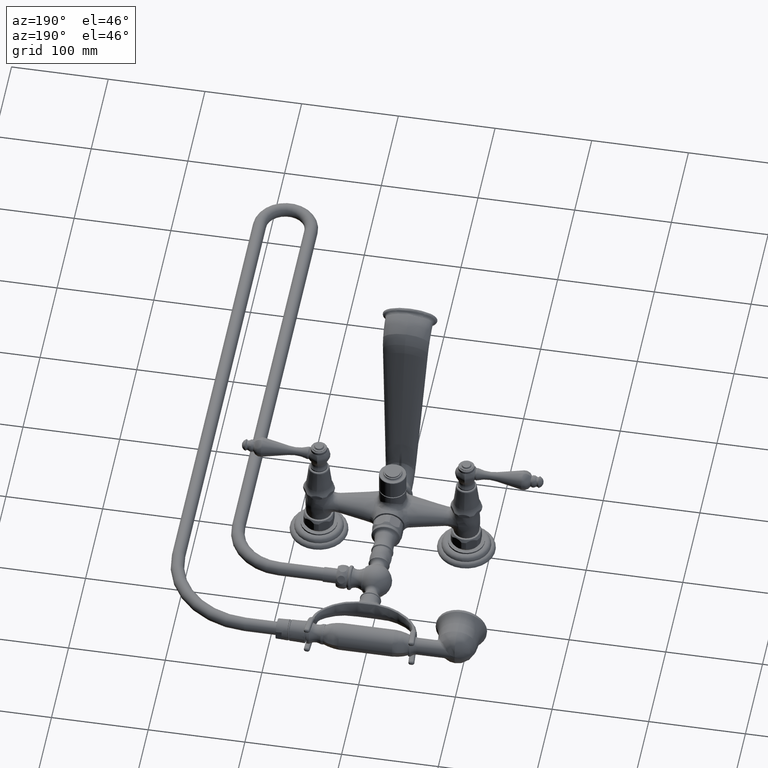
[diagram: clean part render]
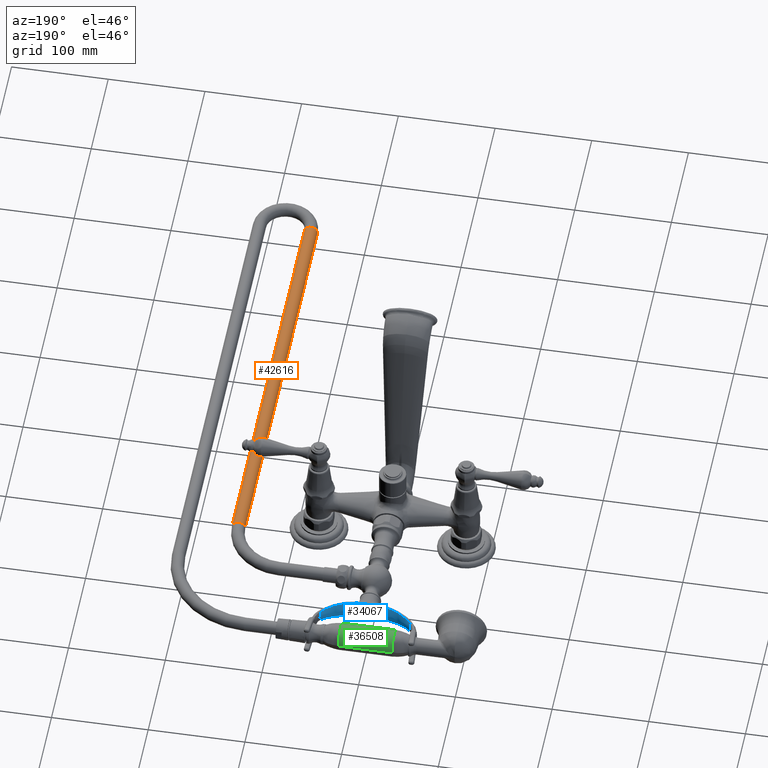
[diagram: same view with three faces highlighted in distinct colors, each labeled with its STEP entity id]
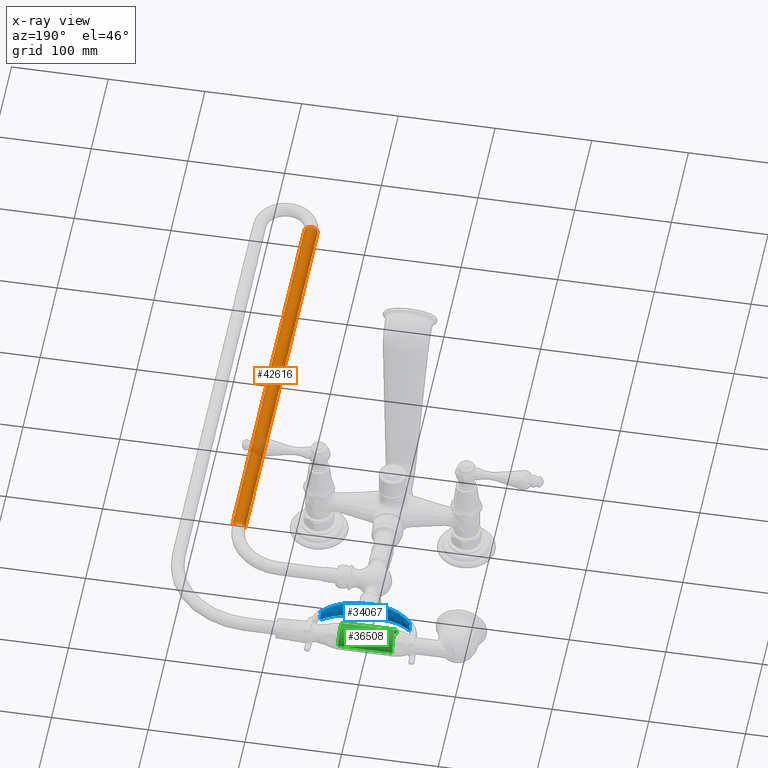
[diagram: x-ray of the same camera — body ghosted, the three highlighted faces saturated]
A machine part, auxiliary view with three faces highlighted in distinct colors.
The next image is the same camera in x-ray (body ghosted, the three faces saturated) — at least one of them is partly hidden behind the body in this view.
Their STEP definitions:

[orange] entity #42616 — the highlighted cylindrical surface (edge-blend (fillet) strip) has radius 6.858 mm, axis along (0, 1, 0).
#17487=DIRECTION('',(0.E0,1.E0,0.E0));
#17488=VECTOR('',#17487,1.6713E1);
#17489=CARTESIAN_POINT('',(6.183426495012E0,-1.466473228346E1,0.E0));
#17490=LINE('',#17489,#17488);
#17491=CARTESIAN_POINT('',(5.913426495012E0,-1.466473228346E1,0.E0));
#17492=DIRECTION('',(0.E0,1.E0,0.E0));
#17493=DIRECTION('',(-1.E0,0.E0,0.E0));
#17494=AXIS2_PLACEMENT_3D('',#17491,#17492,#17493);
#17496=DIRECTION('',(0.E0,1.E0,0.E0));
#17497=VECTOR('',#17496,1.6713E1);
#17498=CARTESIAN_POINT('',(5.643426495012E0,-1.466473228346E1,0.E0));
#17499=LINE('',#17498,#17497);
#17500=CARTESIAN_POINT('',(5.913426495012E0,2.048267716535E0,0.E0));
#17501=DIRECTION('',(0.E0,1.E0,0.E0));
#17502=DIRECTION('',(-1.E0,0.E0,0.E0));
#17503=AXIS2_PLACEMENT_3D('',#17500,#17501,#17502);
#19331=CARTESIAN_POINT('',(6.183426495012E0,-1.466473228346E1,0.E0));
#19332=CARTESIAN_POINT('',(5.643426495012E0,-1.466473228346E1,0.E0));
#19333=VERTEX_POINT('',#19331);
#19334=VERTEX_POINT('',#19332);
#19335=CARTESIAN_POINT('',(6.183426495012E0,2.048267716535E0,0.E0));
#19336=CARTESIAN_POINT('',(5.643426495012E0,2.048267716535E0,0.E0));
#19337=VERTEX_POINT('',#19335);
#19338=VERTEX_POINT('',#19336);
#42604=CARTESIAN_POINT('',(5.913426495012E0,-1.466473228346E1,0.E0));
#42605=DIRECTION('',(0.E0,1.E0,0.E0));
#42606=DIRECTION('',(1.E0,0.E0,0.E0));
#42607=AXIS2_PLACEMENT_3D('',#42604,#42605,#42606);
#42608=CYLINDRICAL_SURFACE('',#42607,2.7E-1);
#42609=ORIENTED_EDGE('',*,*,#42569,.F.);
#42610=ORIENTED_EDGE('',*,*,#42599,.T.);
#42612=ORIENTED_EDGE('',*,*,#42611,.T.);
#42613=ORIENTED_EDGE('',*,*,#42595,.F.);
#42614=EDGE_LOOP('',(#42609,#42610,#42612,#42613));
#42615=FACE_OUTER_BOUND('',#42614,.F.);
#42616=ADVANCED_FACE('',(#42615),#42608,.T.);
#17495=CIRCLE('',#17494,2.7E-1);
#17504=CIRCLE('',#17503,2.7E-1);
#42569=EDGE_CURVE('',#19334,#19333,#17495,.T.);
#42595=EDGE_CURVE('',#19333,#19337,#17490,.T.);
#42599=EDGE_CURVE('',#19334,#19338,#17499,.T.);
#42611=EDGE_CURVE('',#19338,#19337,#17504,.T.);

[blue] entity #34067 — the highlighted face is a freeform B-spline surface patch.
#7843=CARTESIAN_POINT('',(-1.830206889100E0,6.359858918729E0,
2.277887654960E-1));
#7844=CARTESIAN_POINT('',(-1.816718053283E0,6.344438795125E0,
2.302361886630E-1));
#7845=CARTESIAN_POINT('',(-1.787107141337E0,6.312499611002E0,
2.355580722841E-1));
#7846=CARTESIAN_POINT('',(-1.734929078441E0,6.262525362922E0,
2.446444229163E-1));
#7847=CARTESIAN_POINT('',(-1.672642942663E0,6.209331049325E0,
2.549939081348E-1));
#7848=CARTESIAN_POINT('',(-1.597986643695E0,6.152258711095E0,
2.666318879203E-1));
#7849=CARTESIAN_POINT('',(-1.506663527161E0,6.089716515205E0,
2.794642780415E-1));
#7850=CARTESIAN_POINT('',(-1.415328945322E0,6.033876658538E0,
2.911661666514E-1));
#7851=CARTESIAN_POINT('',(-1.322862700612E0,5.983574927829E0,
3.021657273372E-1));
#7852=CARTESIAN_POINT('',(-1.229912848922E0,5.939075231499E0,
3.125874236107E-1));
#7853=CARTESIAN_POINT('',(-1.136716715415E0,5.900246630198E0,
3.226283304235E-1));
#7854=CARTESIAN_POINT('',(-1.043248519368E0,5.866955655858E0,
3.324787980013E-1));
#7855=CARTESIAN_POINT('',(-9.507204635411E-1,5.839316811206E0,
3.422352458476E-1));
#7856=CARTESIAN_POINT('',(-8.491578744886E-1,5.814581336011E0,
3.528195817425E-1));
#7857=CARTESIAN_POINT('',(-7.370343506903E-1,5.793241903685E0,
3.640744236231E-1));
#7858=CARTESIAN_POINT('',(-6.109279993251E-1,5.775506272076E0,
3.758715675650E-1));
#7859=CARTESIAN_POINT('',(-4.657571366178E-1,5.761871948261E0,
3.878193296118E-1));
#7860=CARTESIAN_POINT('',(-2.972072768266E-1,5.752995182198E0,
3.988295510202E-1));
#7861=CARTESIAN_POINT('',(-9.954735926678E-2,5.749643863348E0,
4.064383412732E-1));
#7862=CARTESIAN_POINT('',(1.000589044638E-1,5.749656728392E0,
4.064170575455E-1));
#7863=CARTESIAN_POINT('',(2.977838659146E-1,5.753044157440E0,
3.987687626937E-1));
#7864=CARTESIAN_POINT('',(4.663966996600E-1,5.761959304756E0,
3.877298289868E-1));
#7865=CARTESIAN_POINT('',(6.116173826745E-1,5.775631822815E0,
3.757657500269E-1));
#7866=CARTESIAN_POINT('',(7.377704071497E-1,5.793404599902E0,
3.639627139350E-1));
#7867=CARTESIAN_POINT('',(8.499428308659E-1,5.814781535291E0,
3.527105281906E-1));
#7868=CARTESIAN_POINT('',(9.515480713114E-1,5.839552393754E0,
3.421370703203E-1));
#7869=CARTESIAN_POINT('',(1.044155150289E0,5.867237539230E0,3.323956416018E-1));
#7870=CARTESIAN_POINT('',(1.137701656598E0,5.900577709618E0,3.225645623954E-1));
#7871=CARTESIAN_POINT('',(1.230896484571E0,5.939428162770E0,3.125508610050E-1));
#7872=CARTESIAN_POINT('',(1.323767827483E0,5.983913264421E0,3.021611661149E-1));
#7873=CARTESIAN_POINT('',(1.416075253807E0,6.034155977688E0,2.911961098848E-1));
#7874=CARTESIAN_POINT('',(1.507130266136E0,6.089854656679E0,2.795354126642E-1));
#7875=CARTESIAN_POINT('',(1.598192238631E0,6.152255586446E0,2.667327189298E-1));
#7876=CARTESIAN_POINT('',(1.672794739033E0,6.209324018490E0,2.550837257086E-1));
#7877=CARTESIAN_POINT('',(1.735024341959E0,6.262508422639E0,2.447179741863E-1));
#7878=CARTESIAN_POINT('',(1.787186794720E0,6.312502228598E0,2.356085081097E-1));
#7879=CARTESIAN_POINT('',(1.816789385293E0,6.344455311772E0,2.302721797293E-1));
#7880=CARTESIAN_POINT('',(1.830276470360E0,6.359884435171E0,2.278178638269E-1));
#8002=CARTESIAN_POINT('',(1.830276470360E0,6.359884435171E0,2.278178638269E-1));
#8063=CARTESIAN_POINT('',(1.830276470360E0,6.359884435171E0,2.278178638269E-1));
#8064=CARTESIAN_POINT('',(1.827364888660E0,6.360296231183E0,2.241607536722E-1));
#8065=CARTESIAN_POINT('',(1.821963815485E0,6.361378617099E0,2.167751121295E-1));
#8066=CARTESIAN_POINT('',(1.815145727285E0,6.363698294901E0,2.055937152852E-1));
#8067=CARTESIAN_POINT('',(1.809500619340E0,6.366676481334E0,1.942279702186E-1));
#8068=CARTESIAN_POINT('',(1.804952225097E0,6.370329493475E0,1.825404403914E-1));
#8069=CARTESIAN_POINT('',(1.801474199246E0,6.374706553938E0,1.703756943031E-1));
#8070=CARTESIAN_POINT('',(1.799083699564E0,6.379901609268E0,1.575374022096E-1));
#8071=CARTESIAN_POINT('',(1.797847653787E0,6.386199633273E0,1.434659100603E-1));
#8072=CARTESIAN_POINT('',(1.797971699287E0,6.393842515620E0,1.277870200511E-1));
#8073=CARTESIAN_POINT('',(1.799883031033E0,6.403416541462E0,1.095668484374E-1));
#8074=CARTESIAN_POINT('',(1.803573646529E0,6.413951065805E0,9.046223298287E-2));
#8075=CARTESIAN_POINT('',(1.807552901230E0,6.422879577706E0,7.424801561883E-2));
#8076=CARTESIAN_POINT('',(1.811331762979E0,6.430468008407E0,5.969619369017E-2));
#8077=CARTESIAN_POINT('',(1.814643860678E0,6.436676929025E0,4.641705161701E-2));
#8078=CARTESIAN_POINT('',(1.817301278200E0,6.441457779672E0,3.421344403465E-2));
#8079=CARTESIAN_POINT('',(1.819182822908E0,6.444763639748E0,2.309108135460E-2));
#8080=CARTESIAN_POINT('',(1.820301921304E0,6.446703214157E0,1.317581694008E-2));
#8081=CARTESIAN_POINT('',(1.820804084414E0,6.447568077404E0,4.133939502213E-3));
#8082=CARTESIAN_POINT('',(1.820788179067E0,6.447540702712E0,
-4.689995066289E-3));
#8083=CARTESIAN_POINT('',(1.820251479306E0,6.446616214134E0,
-1.376543054039E-2));
#8084=CARTESIAN_POINT('',(1.819088207297E0,6.444598756842E0,
-2.375369873940E-2));
#8085=CARTESIAN_POINT('',(1.817157106043E0,6.441202244814E0,
-3.494354834262E-2));
#8086=CARTESIAN_POINT('',(1.814456038736E0,6.436332873645E0,
-4.720933374739E-2));
#8087=CARTESIAN_POINT('',(1.811106409187E0,6.430032369887E0,
-6.056807568035E-2));
#8088=CARTESIAN_POINT('',(1.807338831245E0,6.422422235663E0,
-7.509167908484E-2));
#8089=CARTESIAN_POINT('',(1.803475345568E0,6.413682597928E0,
-9.094672706367E-2));
#8090=CARTESIAN_POINT('',(1.799892247924E0,6.403426016853E0,
-1.095532008914E-1));
#8091=CARTESIAN_POINT('',(1.797969710040E0,6.393844238598E0,
-1.277822617727E-1));
#8092=CARTESIAN_POINT('',(1.797848208905E0,6.386198842454E0,
-1.434678838808E-1));
#8093=CARTESIAN_POINT('',(1.799083570201E0,6.379901765096E0,
-1.575370061994E-1));
#8094=CARTESIAN_POINT('',(1.801474221578E0,6.374706531799E0,
-1.703757487555E-1));
#8095=CARTESIAN_POINT('',(1.804952220178E0,6.370329498421E0,
-1.825404288184E-1));
#8096=CARTESIAN_POINT('',(1.809500619766E0,6.366676480609E0,
-1.942279712251E-1));
#8097=CARTESIAN_POINT('',(1.815145725517E0,6.363698295761E0,
-2.055937120245E-1));
#8098=CARTESIAN_POINT('',(1.821963814583E0,6.361378617522E0,
-2.167751105812E-1));
#8099=CARTESIAN_POINT('',(1.827364887996E0,6.360296231067E0,
-2.241607530997E-1));
#8100=CARTESIAN_POINT('',(1.830276470004E0,6.359884434821E0,
-2.278178638517E-1));
#8141=CARTESIAN_POINT('',(-1.830206887236E0,6.359858916669E0,
-2.277887657738E-1));
#8142=CARTESIAN_POINT('',(-1.827296207364E0,6.360269492400E0,
-2.241344900538E-1));
#8143=CARTESIAN_POINT('',(-1.821896378257E0,6.361349052889E0,
-2.167546414792E-1));
#8144=CARTESIAN_POINT('',(-1.815078465056E0,6.363663468881E0,
-2.055820301495E-1));
#8145=CARTESIAN_POINT('',(-1.809432115300E0,6.366635308827E0,
-1.942255199947E-1));
#8146=CARTESIAN_POINT('',(-1.804880992402E0,6.370280691212E0,
-1.825478576950E-1));
#8147=CARTESIAN_POINT('',(-1.801398515473E0,6.374648502858E0,
-1.703938194072E-1));
#8148=CARTESIAN_POINT('',(-1.799001722393E0,6.379832134602E0,
-1.575678141324E-1));
#8149=CARTESIAN_POINT('',(-1.797756674889E0,6.386114862565E0,
-1.435124038409E-1));
#8150=CARTESIAN_POINT('',(-1.797868258746E0,6.393738573702E0,
-1.278518833498E-1));
#8151=CARTESIAN_POINT('',(-1.799759458530E0,6.403281350175E0,
-1.096644620251E-1));
#8152=CARTESIAN_POINT('',(-1.803431710714E0,6.413798325520E0,
-9.056372369547E-2));
#8153=CARTESIAN_POINT('',(-1.807405807114E0,6.422728869096E0,
-7.432388378991E-2));
#8154=CARTESIAN_POINT('',(-1.811179854172E0,6.430313515800E0,
-5.975984074856E-2));
#8155=CARTESIAN_POINT('',(-1.814489665075E0,6.436520827257E0,
-4.646717881418E-2));
#8156=CARTESIAN_POINT('',(-1.817145786214E0,6.441300203606E0,
-3.425209163595E-2));
#8157=CARTESIAN_POINT('',(-1.819026904309E0,6.444605439677E0,
-2.311905582195E-2));
#8158=CARTESIAN_POINT('',(-1.820145973270E0,6.446544883872E0,
-1.319409514277E-2));
#8159=CARTESIAN_POINT('',(-1.820648311175E0,6.447409973781E0,
-4.143820035723E-3));
#8160=CARTESIAN_POINT('',(-1.820632756166E0,6.447383204611E0,
4.688278875482E-3));
#8161=CARTESIAN_POINT('',(-1.820096651583E0,6.446459823129E0,
1.377137474371E-2));
#8162=CARTESIAN_POINT('',(-1.818934384486E0,6.444444209913E0,
2.376791435500E-2));
#8163=CARTESIAN_POINT('',(-1.817004790776E0,6.441050287097E0,
3.496712964635E-2));
#8164=CARTESIAN_POINT('',(-1.814306004462E0,6.436184279345E0,
4.724330186329E-2));
#8165=CARTESIAN_POINT('',(-1.810959481081E0,6.429887324762E0,
6.061402090810E-2));
#8166=CARTESIAN_POINT('',(-1.807197069894E0,6.422282111244E0,
7.514902857128E-2));
#8167=CARTESIAN_POINT('',(-1.803339583969E0,6.413545006334E0,
9.102151992232E-2));
#8168=CARTESIAN_POINT('',(-1.799768954558E0,6.403293590733E0,
1.096454181281E-1));
#8169=CARTESIAN_POINT('',(-1.797866119908E0,6.393738960237E0,
1.278497345190E-1));
#8170=CARTESIAN_POINT('',(-1.797757269391E0,6.386114437163E0,
1.435136628553E-1));
#8171=CARTESIAN_POINT('',(-1.799001585067E0,6.379832179941E0,
1.575676378331E-1));
#8172=CARTESIAN_POINT('',(-1.801398552401E0,6.374648488599E0,
1.703938712043E-1));
#8173=CARTESIAN_POINT('',(-1.804880997557E0,6.370280678633E0,
1.825478912848E-1));
#8174=CARTESIAN_POINT('',(-1.809432131594E0,6.366635299755E0,
1.942255528522E-1));
#8175=CARTESIAN_POINT('',(-1.815078481407E0,6.363663461848E0,
2.055820604515E-1));
#8176=CARTESIAN_POINT('',(-1.821896402395E0,6.361349045340E0,
2.167546785584E-1));
#8177=CARTESIAN_POINT('',(-1.827296220539E0,6.360269492876E0,
2.241345039499E-1));
#8178=CARTESIAN_POINT('',(-1.830206889100E0,6.359858918729E0,
2.277887654960E-1));
#8227=CARTESIAN_POINT('',(-1.830206889100E0,6.359858918729E0,
2.277887654960E-1));
#8387=CARTESIAN_POINT('',(-1.830206887236E0,6.359858916669E0,
-2.277887657738E-1));
#8388=CARTESIAN_POINT('',(-1.816718398561E0,6.344439190065E0,
-2.302361259936E-1));
#8389=CARTESIAN_POINT('',(-1.787108322002E0,6.312500915021E0,
-2.355578550385E-1));
#8390=CARTESIAN_POINT('',(-1.734932629102E0,6.262528514277E0,
-2.446438289876E-1));
#8391=CARTESIAN_POINT('',(-1.672646719069E0,6.209334412497E0,
-2.549932478332E-1));
#8392=CARTESIAN_POINT('',(-1.598002213243E0,6.152269657206E0,
-2.666296325773E-1));
#8393=CARTESIAN_POINT('',(-1.506653002102E0,6.089709400095E0,
-2.794657457596E-1));
#8394=CARTESIAN_POINT('',(-1.415327737616E0,6.033876210406E0,
-2.911662738971E-1));
#8395=CARTESIAN_POINT('',(-1.322862086338E0,5.983574609528E0,
-3.021658037071E-1));
#8396=CARTESIAN_POINT('',(-1.229915682650E0,5.939076527961E0,
-3.125871068939E-1));
#8397=CARTESIAN_POINT('',(-1.136720488195E0,5.900248250340E0,
-3.226279277044E-1));
#8398=CARTESIAN_POINT('',(-1.043260498986E0,5.866959435799E0,
-3.324775381431E-1));
#8399=CARTESIAN_POINT('',(-9.507140216696E-1,5.839314882115E0,
-3.422359246808E-1));
#8400=CARTESIAN_POINT('',(-8.491567557990E-1,5.814581246362E0,
-3.528196888758E-1));
#8401=CARTESIAN_POINT('',(-7.370356639307E-1,5.793242121176E0,
-3.640742974556E-1));
#8402=CARTESIAN_POINT('',(-6.109315882234E-1,5.775506758373E0,
-3.758712179448E-1));
#8403=CARTESIAN_POINT('',(-4.657642604180E-1,5.761872423124E0,
-3.878188589081E-1));
#8404=CARTESIAN_POINT('',(-2.972137984944E-1,5.752995560546E0,
-3.988289627952E-1));
#8405=CARTESIAN_POINT('',(-9.957443915870E-2,5.749643921755E0,
-4.064380862005E-1));
#8406=CARTESIAN_POINT('',(1.000815730151E-1,5.749656778297E0,
-4.064168896066E-1));
#8407=CARTESIAN_POINT('',(2.977858720469E-1,5.753044385500E0,
-3.987684153405E-1));
#8408=CARTESIAN_POINT('',(4.664000836456E-1,5.761959505975E0,
-3.877296406781E-1));
#8409=CARTESIAN_POINT('',(6.116177317011E-1,5.775631931136E0,
-3.757656878334E-1));
#8410=CARTESIAN_POINT('',(7.377687803826E-1,5.793404330886E0,
-3.639628748470E-1));
#8411=CARTESIAN_POINT('',(8.499391337480E-1,5.814780884352E0,
-3.527108998993E-1));
#8412=CARTESIAN_POINT('',(9.515390888578E-1,5.839549785548E0,
-3.421380150305E-1));
#8413=CARTESIAN_POINT('',(1.044164347237E0,5.867240398383E0,
-3.323946759495E-1));
#8414=CARTESIAN_POINT('',(1.137703788141E0,5.900578685210E0,
-3.225643352415E-1));
#8415=CARTESIAN_POINT('',(1.230897375445E0,5.939428599037E0,
-3.125507566859E-1));
#8416=CARTESIAN_POINT('',(1.323765342083E0,5.983911981179E0,
-3.021614585621E-1));
#8417=CARTESIAN_POINT('',(1.416072257030E0,6.034154512304E0,
-2.911964335507E-1));
#8418=CARTESIAN_POINT('',(1.507117685770E0,6.089846165032E0,
-2.795371648142E-1));
#8419=CARTESIAN_POINT('',(1.598208475798E0,6.152266994218E0,
-2.667303656968E-1));
#8420=CARTESIAN_POINT('',(1.672798355548E0,6.209327277208E0,
-2.550830861292E-1));
#8421=CARTESIAN_POINT('',(1.735027957808E0,6.262511624401E0,
-2.447173688712E-1));
#8422=CARTESIAN_POINT('',(1.787187981734E0,6.312503544635E0,
-2.356082887177E-1));
#8423=CARTESIAN_POINT('',(1.816789737684E0,6.344455715206E0,
-2.302721153260E-1));
#8424=CARTESIAN_POINT('',(1.830276470004E0,6.359884434821E0,
-2.278178638517E-1));
#16835=CARTESIAN_POINT('',(-1.830206887236E0,6.359858916669E0,
-2.277887657738E-1));
#19124=VERTEX_POINT('',#8227);
#19137=VERTEX_POINT('',#16835);
#19145=VERTEX_POINT('',#8002);
#19147=VERTEX_POINT('',#8100);
#33959=CARTESIAN_POINT('',(-1.888789809934E0,6.393595143223E0,
2.550197619299E-1));
#33960=CARTESIAN_POINT('',(-1.882826494205E0,6.398302839033E0,
2.451645920230E-1));
#33961=CARTESIAN_POINT('',(-1.865333903947E0,6.412112093077E0,
2.134160437510E-1));
#33962=CARTESIAN_POINT('',(-1.841977856107E0,6.430549627663E0,
1.551993021022E-1));
#33963=CARTESIAN_POINT('',(-1.824561934292E0,6.444297612407E0,
7.901608254775E-2));
#33964=CARTESIAN_POINT('',(-1.818686372897E0,6.448935672711E0,0.E0));
#33965=CARTESIAN_POINT('',(-1.824561934292E0,6.444297612407E0,
-7.901608254775E-2));
#33966=CARTESIAN_POINT('',(-1.841977856107E0,6.430549627663E0,
-1.551993021022E-1));
#33967=CARTESIAN_POINT('',(-1.865333903798E0,6.412112093194E0,
-2.134160433808E-1));
#33968=CARTESIAN_POINT('',(-1.882826493831E0,6.398302839327E0,
-2.451645913452E-1));
#33969=CARTESIAN_POINT('',(-1.888789809340E0,6.393595143692E0,
-2.550197609473E-1));
#33970=CARTESIAN_POINT('',(-1.805070499675E0,6.287910153E0,2.651142230618E-1));
#33971=CARTESIAN_POINT('',(-1.799558961320E0,6.293864708647E0,
2.549401904023E-1));
#33972=CARTESIAN_POINT('',(-1.783383608234E0,6.311337489122E0,
2.221141148538E-1));
#33973=CARTESIAN_POINT('',(-1.761757882717E0,6.334687976018E0,
1.616922897694E-1));
#33974=CARTESIAN_POINT('',(-1.745614766235E0,6.352112516889E0,
8.237935594466E-2));
#33975=CARTESIAN_POINT('',(-1.740165705333E0,6.357993105273E0,0.E0));
#33976=CARTESIAN_POINT('',(-1.745614766235E0,6.352112516889E0,
-8.237935594466E-2));
#33977=CARTESIAN_POINT('',(-1.761757882717E0,6.334687976018E0,
-1.616922897694E-1));
#33978=CARTESIAN_POINT('',(-1.783383608097E0,6.311337489270E0,
-2.221141144696E-1));
#33979=CARTESIAN_POINT('',(-1.799558960974E0,6.293864709020E0,
-2.549401897015E-1));
#33980=CARTESIAN_POINT('',(-1.805070499125E0,6.287910153593E0,
-2.651142220474E-1));
#33981=CARTESIAN_POINT('',(-1.528887716378E0,6.062419933154E0,
2.986631125522E-1));
#33982=CARTESIAN_POINT('',(-1.524911726193E0,6.071403808415E0,
2.873999827559E-1));
#33983=CARTESIAN_POINT('',(-1.513223688791E0,6.097791075959E0,
2.509194587933E-1));
#33984=CARTESIAN_POINT('',(-1.497528725848E0,6.133145221629E0,
1.831297214794E-1));
#33985=CARTESIAN_POINT('',(-1.485770703797E0,6.159582533891E0,
9.346212202101E-2));
#33986=CARTESIAN_POINT('',(-1.481794815354E0,6.168514051536E0,0.E0));
#33987=CARTESIAN_POINT('',(-1.485770703797E0,6.159582533891E0,
-9.346212202101E-2));
#33988=CARTESIAN_POINT('',(-1.497528725848E0,6.133145221629E0,
-1.831297214794E-1));
#33989=CARTESIAN_POINT('',(-1.513223688691E0,6.097791076184E0,
-2.509194583623E-1));
#33990=CARTESIAN_POINT('',(-1.524911725944E0,6.071403808978E0,
-2.873999819771E-1));
#33991=CARTESIAN_POINT('',(-1.528887715982E0,6.062419934049E0,
-2.986631114292E-1));
#33992=CARTESIAN_POINT('',(-9.050877400622E-1,5.766219675702E0,
3.455729930128E-1));
#33993=CARTESIAN_POINT('',(-9.037331480308E-1,5.778549059970E0,
3.332490253118E-1));
#33994=CARTESIAN_POINT('',(-8.997396762385E-1,5.814883771107E0,
2.928273101133E-1));
#33995=CARTESIAN_POINT('',(-8.943361074793E-1,5.863999385048E0,
2.153986235274E-1));
#33996=CARTESIAN_POINT('',(-8.902626813711E-1,5.900994484904E0,
1.105108186188E-1));
#33997=CARTESIAN_POINT('',(-8.888810661810E-1,5.913537360742E0,0.E0));
#33998=CARTESIAN_POINT('',(-8.902626813711E-1,5.900994484904E0,
-1.105108186188E-1));
#33999=CARTESIAN_POINT('',(-8.943361074793E-1,5.863999385048E0,
-2.153986235274E-1));
#34000=CARTESIAN_POINT('',(-8.997396762041E-1,5.814883771419E0,
-2.928273096210E-1));
#34001=CARTESIAN_POINT('',(-9.037331479456E-1,5.778549060746E0,
-3.332490244489E-1));
#34002=CARTESIAN_POINT('',(-9.050877399271E-1,5.766219676931E0,
-3.455729917840E-1));
#34003=CARTESIAN_POINT('',(2.796345988187E-5,5.739766164592E0,
4.433473804547E-1));
#34004=CARTESIAN_POINT('',(2.908878194280E-5,5.753057425193E0,
4.261880474582E-1));
#34005=CARTESIAN_POINT('',(3.238370880415E-5,5.792032830760E0,
3.709249553253E-1));
#34006=CARTESIAN_POINT('',(3.676141852305E-5,5.844025942715E0,
2.696717751378E-1));
#34007=CARTESIAN_POINT('',(4.001239042356E-5,5.882766122566E0,
1.372712936820E-1));
#34008=CARTESIAN_POINT('',(4.110693200371E-5,5.895830777042E0,0.E0));
#34009=CARTESIAN_POINT('',(4.001239042351E-5,5.882766122566E0,
-1.372712936820E-1));
#34010=CARTESIAN_POINT('',(3.676141852388E-5,5.844025942715E0,
-2.696717751378E-1));
#34011=CARTESIAN_POINT('',(3.238370883224E-5,5.792032831091E0,
-3.709249546815E-1));
#34012=CARTESIAN_POINT('',(2.908878201363E-5,5.753057426025E0,
-4.261880462785E-1));
#34013=CARTESIAN_POINT('',(2.796345999451E-5,5.739766165917E0,
-4.433473787439E-1));
#34014=CARTESIAN_POINT('',(9.053714533057E-1,5.766300169087E0,
3.454690976585E-1));
#34015=CARTESIAN_POINT('',(9.040126230321E-1,5.778623411289E0,
3.331488119975E-1));
#34016=CARTESIAN_POINT('',(9.000067304360E-1,5.814940056860E0,
2.927391923059E-1));
#34017=CARTESIAN_POINT('',(8.945866186213E-1,5.864031376138E0,
2.153337550870E-1));
#34018=CARTESIAN_POINT('',(8.905008821938E-1,5.901008253448E0,
1.104775211728E-1));
#34019=CARTESIAN_POINT('',(8.891151181348E-1,5.913544963811E0,0.E0));
#34020=CARTESIAN_POINT('',(8.905008821938E-1,5.901008253448E0,
-1.104775211728E-1));
#34021=CARTESIAN_POINT('',(8.945866186213E-1,5.864031376138E0,
-2.153337550870E-1));
#34022=CARTESIAN_POINT('',(9.000067304015E-1,5.814940057172E0,
-2.927391918138E-1));
#34023=CARTESIAN_POINT('',(9.040126229466E-1,5.778623412065E0,
-3.331488111348E-1));
#34024=CARTESIAN_POINT('',(9.053714531703E-1,5.766300170315E0,
-3.454690964301E-1));
#34025=CARTESIAN_POINT('',(1.529460418583E0,6.062513121028E0,
2.987645311511E-1));
#34026=CARTESIAN_POINT('',(1.525489237782E0,6.071506083833E0,
2.874983349246E-1));
#34027=CARTESIAN_POINT('',(1.513815269710E0,6.097920133337E0,
2.510073348083E-1));
#34028=CARTESIAN_POINT('',(1.498138955199E0,6.133310484349E0,
1.831956479777E-1));
#34029=CARTESIAN_POINT('',(1.486394754557E0,6.159775068564E0,
9.349638359524E-2));
#34030=CARTESIAN_POINT('',(1.482423514974E0,6.168715832684E0,0.E0));
#34031=CARTESIAN_POINT('',(1.486394754557E0,6.159775068564E0,
-9.349638359524E-2));
#34032=CARTESIAN_POINT('',(1.498138955199E0,6.133310484349E0,
-1.831956479777E-1));
#34033=CARTESIAN_POINT('',(1.513815269611E0,6.097920133562E0,
-2.510073343772E-1));
#34034=CARTESIAN_POINT('',(1.525489237532E0,6.071506084397E0,
-2.874983341456E-1));
#34035=CARTESIAN_POINT('',(1.529460418187E0,6.062513121924E0,
-2.987645300279E-1));
#34036=CARTESIAN_POINT('',(1.805444645087E0,6.288246587083E0,
2.651262545473E-1));
#34037=CARTESIAN_POINT('',(1.799933742040E0,6.294200791849E0,
2.549518610160E-1));
#34038=CARTESIAN_POINT('',(1.783760262931E0,6.311672574959E0,
2.221245512258E-1));
#34039=CARTESIAN_POINT('',(1.762137076313E0,6.335021844441E0,
1.617001299289E-1));
#34040=CARTESIAN_POINT('',(1.745995875437E0,6.352445548058E0,
8.238343470389E-2));
#34041=CARTESIAN_POINT('',(1.740547464516E0,6.358325865762E0,0.E0));
#34042=CARTESIAN_POINT('',(1.745995875437E0,6.352445548058E0,
-8.238343470389E-2));
#34043=CARTESIAN_POINT('',(1.762137076313E0,6.335021844441E0,
-1.617001299289E-1));
#34044=CARTESIAN_POINT('',(1.783760262794E0,6.311672575108E0,
-2.221245508417E-1));
#34045=CARTESIAN_POINT('',(1.799933741695E0,6.294200792222E0,
-2.549518603152E-1));
#34046=CARTESIAN_POINT('',(1.805444644537E0,6.288246587677E0,
-2.651262535328E-1));
#34047=CARTESIAN_POINT('',(1.888943253658E0,6.393758527041E0,
2.550227872377E-1));
#34048=CARTESIAN_POINT('',(1.882980113092E0,6.398465715811E0,
2.451675218289E-1));
#34049=CARTESIAN_POINT('',(1.865488043302E0,6.412273494630E0,
2.134186515270E-1));
#34050=CARTESIAN_POINT('',(1.842132713976E0,6.430709102889E0,
1.552012512782E-1));
#34051=CARTESIAN_POINT('',(1.824717342337E0,6.444455678024E0,
7.901709348736E-2));
#34052=CARTESIAN_POINT('',(1.818841968943E0,6.449093267250E0,0.E0));
#34053=CARTESIAN_POINT('',(1.824717342337E0,6.444455678024E0,
-7.901709348736E-2));
#34054=CARTESIAN_POINT('',(1.842132713976E0,6.430709102889E0,
-1.552012512782E-1));
#34055=CARTESIAN_POINT('',(1.865488043154E0,6.412273494747E0,
-2.134186511568E-1));
#34056=CARTESIAN_POINT('',(1.882980112718E0,6.398465716106E0,
-2.451675211511E-1));
#34057=CARTESIAN_POINT('',(1.888943253064E0,6.393758527510E0,
-2.550227862551E-1));
#34058=B_SPLINE_SURFACE_WITH_KNOTS('',3,3,((#33959,#33960,#33961,#33962,#33963,
#33964,#33965,#33966,#33967,#33968,#33969),(#33970,#33971,#33972,#33973,#33974,
#33975,#33976,#33977,#33978,#33979,#33980),(#33981,#33982,#33983,#33984,#33985,
#33986,#33987,#33988,#33989,#33990,#33991),(#33992,#33993,#33994,#33995,#33996,
#33997,#33998,#33999,#34000,#34001,#34002),(#34003,#34004,#34005,#34006,#34007,
#34008,#34009,#34010,#34011,#34012,#34013),(#34014,#34015,#34016,#34017,#34018,
#34019,#34020,#34021,#34022,#34023,#34024),(#34025,#34026,#34027,#34028,#34029,
#34030,#34031,#34032,#34033,#34034,#34035),(#34036,#34037,#34038,#34039,#34040,
#34041,#34042,#34043,#34044,#34045,#34046),(#34047,#34048,#34049,#34050,#34051,
#34052,#34053,#34054,#34055,#34056,#34057)),.UNSPECIFIED.,.F.,.F.,.F.,(4,1,1,1,
1,1,4),(4,1,1,1,1,1,1,1,4),(9.156003064354E-2,1.740296241802E-1,
3.003615479964E-1,4.999956186558E-1,6.996296893153E-1,8.261794292124E-1,
9.084853095422E-1),(5.329293098714E-1,5.625E-1,6.25E-1,6.875E-1,7.5E-1,8.125E-1,
8.75E-1,9.375E-1,9.670706891458E-1),.UNSPECIFIED.);
#34059=ORIENTED_EDGE('',*,*,#33952,.F.);
#34060=ORIENTED_EDGE('',*,*,#33470,.F.);
#34062=ORIENTED_EDGE('',*,*,#34061,.F.);
#34064=ORIENTED_EDGE('',*,*,#34063,.T.);
#34065=EDGE_LOOP('',(#34059,#34060,#34062,#34064));
#34066=FACE_OUTER_BOUND('',#34065,.F.);
#34067=ADVANCED_FACE('',(#34066),#34058,.T.);
#7881=B_SPLINE_CURVE_WITH_KNOTS('',3,(#7843,#7844,#7845,#7846,#7847,#7848,#7849,
#7850,#7851,#7852,#7853,#7854,#7855,#7856,#7857,#7858,#7859,#7860,#7861,#7862,
#7863,#7864,#7865,#7866,#7867,#7868,#7869,#7870,#7871,#7872,#7873,#7874,#7875,
#7876,#7877,#7878,#7879,#7880),.UNSPECIFIED.,.F.,.F.,(4,1,1,1,1,1,1,1,1,1,1,1,1,
1,1,1,1,1,1,1,1,1,1,1,1,1,1,1,1,1,1,1,1,1,1,4),(0.E0,2.857142857143E-2,
5.714285714286E-2,8.571428571429E-2,1.142857142857E-1,1.428571428571E-1,
1.714285714286E-1,2.E-1,2.285714285714E-1,2.571428571429E-1,2.857142857143E-1,
3.142857142857E-1,3.428571428571E-1,3.714285714286E-1,4.E-1,4.285714285714E-1,
4.571428571429E-1,4.857142857143E-1,5.142857142857E-1,5.428571428571E-1,
5.714285714286E-1,6.E-1,6.285714285714E-1,6.571428571429E-1,6.857142857143E-1,
7.142857142857E-1,7.428571428571E-1,7.714285714286E-1,8.E-1,8.285714285714E-1,
8.571428571429E-1,8.857142857143E-1,9.142857142857E-1,9.428571428571E-1,
9.714285714286E-1,1.E0),.UNSPECIFIED.);
#8101=B_SPLINE_CURVE_WITH_KNOTS('',3,(#8063,#8064,#8065,#8066,#8067,#8068,#8069,
#8070,#8071,#8072,#8073,#8074,#8075,#8076,#8077,#8078,#8079,#8080,#8081,#8082,
#8083,#8084,#8085,#8086,#8087,#8088,#8089,#8090,#8091,#8092,#8093,#8094,#8095,
#8096,#8097,#8098,#8099,#8100),.UNSPECIFIED.,.F.,.F.,(4,1,1,1,1,1,1,1,1,1,1,1,1,
1,1,1,1,1,1,1,1,1,1,1,1,1,1,1,1,1,1,1,1,1,1,4),(0.E0,2.857142857143E-2,
5.714285714286E-2,8.571428571429E-2,1.142857142857E-1,1.428571428571E-1,
1.714285714286E-1,2.E-1,2.285714285714E-1,2.571428571429E-1,2.857142857143E-1,
3.142857142857E-1,3.428571428571E-1,3.714285714286E-1,4.E-1,4.285714285714E-1,
4.571428571429E-1,4.857142857143E-1,5.142857142857E-1,5.428571428571E-1,
5.714285714286E-1,6.E-1,6.285714285714E-1,6.571428571429E-1,6.857142857143E-1,
7.142857142857E-1,7.428571428571E-1,7.714285714286E-1,8.E-1,8.285714285714E-1,
8.571428571429E-1,8.857142857143E-1,9.142857142857E-1,9.428571428571E-1,
9.714285714286E-1,1.E0),.UNSPECIFIED.);
#8179=B_SPLINE_CURVE_WITH_KNOTS('',3,(#8141,#8142,#8143,#8144,#8145,#8146,#8147,
#8148,#8149,#8150,#8151,#8152,#8153,#8154,#8155,#8156,#8157,#8158,#8159,#8160,
#8161,#8162,#8163,#8164,#8165,#8166,#8167,#8168,#8169,#8170,#8171,#8172,#8173,
#8174,#8175,#8176,#8177,#8178),.UNSPECIFIED.,.F.,.F.,(4,1,1,1,1,1,1,1,1,1,1,1,1,
1,1,1,1,1,1,1,1,1,1,1,1,1,1,1,1,1,1,1,1,1,1,4),(0.E0,2.857142857143E-2,
5.714285714286E-2,8.571428571429E-2,1.142857142857E-1,1.428571428571E-1,
1.714285714286E-1,2.E-1,2.285714285714E-1,2.571428571429E-1,2.857142857143E-1,
3.142857142857E-1,3.428571428571E-1,3.714285714286E-1,4.E-1,4.285714285714E-1,
4.571428571429E-1,4.857142857143E-1,5.142857142857E-1,5.428571428571E-1,
5.714285714286E-1,6.E-1,6.285714285714E-1,6.571428571429E-1,6.857142857143E-1,
7.142857142857E-1,7.428571428571E-1,7.714285714286E-1,8.E-1,8.285714285714E-1,
8.571428571429E-1,8.857142857143E-1,9.142857142857E-1,9.428571428571E-1,
9.714285714286E-1,1.E0),.UNSPECIFIED.);
#8425=B_SPLINE_CURVE_WITH_KNOTS('',3,(#8387,#8388,#8389,#8390,#8391,#8392,#8393,
#8394,#8395,#8396,#8397,#8398,#8399,#8400,#8401,#8402,#8403,#8404,#8405,#8406,
#8407,#8408,#8409,#8410,#8411,#8412,#8413,#8414,#8415,#8416,#8417,#8418,#8419,
#8420,#8421,#8422,#8423,#8424),.UNSPECIFIED.,.F.,.F.,(4,1,1,1,1,1,1,1,1,1,1,1,1,
1,1,1,1,1,1,1,1,1,1,1,1,1,1,1,1,1,1,1,1,1,1,4),(0.E0,2.857142857143E-2,
5.714285714286E-2,8.571428571429E-2,1.142857142857E-1,1.428571428571E-1,
1.714285714286E-1,2.E-1,2.285714285714E-1,2.571428571429E-1,2.857142857143E-1,
3.142857142857E-1,3.428571428571E-1,3.714285714286E-1,4.E-1,4.285714285714E-1,
4.571428571429E-1,4.857142857143E-1,5.142857142857E-1,5.428571428571E-1,
5.714285714286E-1,6.E-1,6.285714285714E-1,6.571428571429E-1,6.857142857143E-1,
7.142857142857E-1,7.428571428571E-1,7.714285714286E-1,8.E-1,8.285714285714E-1,
8.571428571429E-1,8.857142857143E-1,9.142857142857E-1,9.428571428571E-1,
9.714285714286E-1,1.E0),.UNSPECIFIED.);
#33470=EDGE_CURVE('',#19124,#19145,#7881,.T.);
#33952=EDGE_CURVE('',#19145,#19147,#8101,.T.);
#34061=EDGE_CURVE('',#19137,#19124,#8179,.T.);
#34063=EDGE_CURVE('',#19137,#19147,#8425,.T.);

[green] entity #36508 — the highlighted cylindrical surface (edge-blend (fillet) strip) has radius 13.716 mm, axis along (1, 0, 0).
#9068=DIRECTION('',(-1.E0,0.E0,0.E0));
#9069=VECTOR('',#9068,2.185078949555E0);
#9070=CARTESIAN_POINT('',(8.279659697900E-1,6.8E0,0.E0));
#9071=LINE('',#9070,#9069);
#9072=DIRECTION('',(-1.E0,0.E0,0.E0));
#9073=VECTOR('',#9072,2.185078949555E0);
#9074=CARTESIAN_POINT('',(8.279659697900E-1,7.88E0,0.E0));
#9075=LINE('',#9074,#9073);
#9076=CARTESIAN_POINT('',(8.279659697900E-1,7.34E0,0.E0));
#9077=DIRECTION('',(-1.E0,0.E0,0.E0));
#9078=DIRECTION('',(0.E0,-1.E0,0.E0));
#9079=AXIS2_PLACEMENT_3D('',#9076,#9077,#9078);
#16878=CARTESIAN_POINT('',(-1.357112979766E0,7.34E0,0.E0));
#16879=DIRECTION('',(-1.E0,0.E0,0.E0));
#16880=DIRECTION('',(0.E0,-1.E0,0.E0));
#16881=AXIS2_PLACEMENT_3D('',#16878,#16879,#16880);
#19436=CARTESIAN_POINT('',(8.279659697900E-1,6.8E0,0.E0));
#19437=CARTESIAN_POINT('',(-1.357112979766E0,6.8E0,0.E0));
#19438=VERTEX_POINT('',#19436);
#19439=VERTEX_POINT('',#19437);
#19440=CARTESIAN_POINT('',(8.279659697900E-1,7.88E0,0.E0));
#19441=CARTESIAN_POINT('',(-1.357112979766E0,7.88E0,0.E0));
#19442=VERTEX_POINT('',#19440);
#19443=VERTEX_POINT('',#19441);
#36494=CARTESIAN_POINT('',(-2.250073504988E0,7.34E0,0.E0));
#36495=DIRECTION('',(1.E0,0.E0,0.E0));
#36496=DIRECTION('',(0.E0,1.E0,0.E0));
#36497=AXIS2_PLACEMENT_3D('',#36494,#36495,#36496);
#36498=CYLINDRICAL_SURFACE('',#36497,5.4E-1);
#36500=ORIENTED_EDGE('',*,*,#36499,.T.);
#36502=ORIENTED_EDGE('',*,*,#36501,.T.);
#36504=ORIENTED_EDGE('',*,*,#36503,.F.);
#36505=ORIENTED_EDGE('',*,*,#36488,.F.);
#36506=EDGE_LOOP('',(#36500,#36502,#36504,#36505));
#36507=FACE_OUTER_BOUND('',#36506,.F.);
#36508=ADVANCED_FACE('',(#36507),#36498,.T.);
#9080=CIRCLE('',#9079,5.4E-1);
#16882=CIRCLE('',#16881,5.4E-1);
#36488=EDGE_CURVE('',#19438,#19442,#9080,.T.);
#36499=EDGE_CURVE('',#19438,#19439,#9071,.T.);
#36501=EDGE_CURVE('',#19439,#19443,#16882,.T.);
#36503=EDGE_CURVE('',#19442,#19443,#9075,.T.);